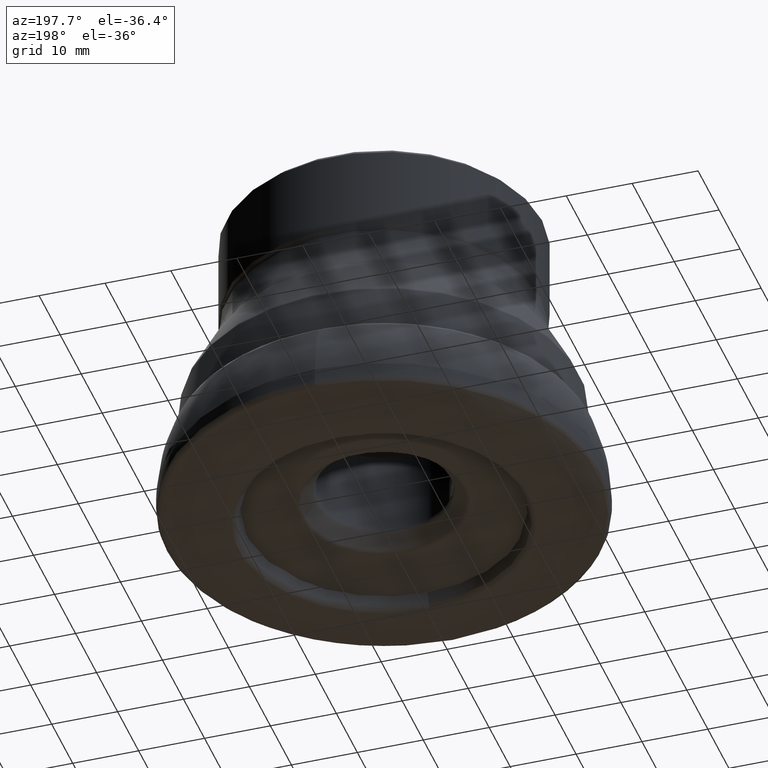
[diagram: clean part render]
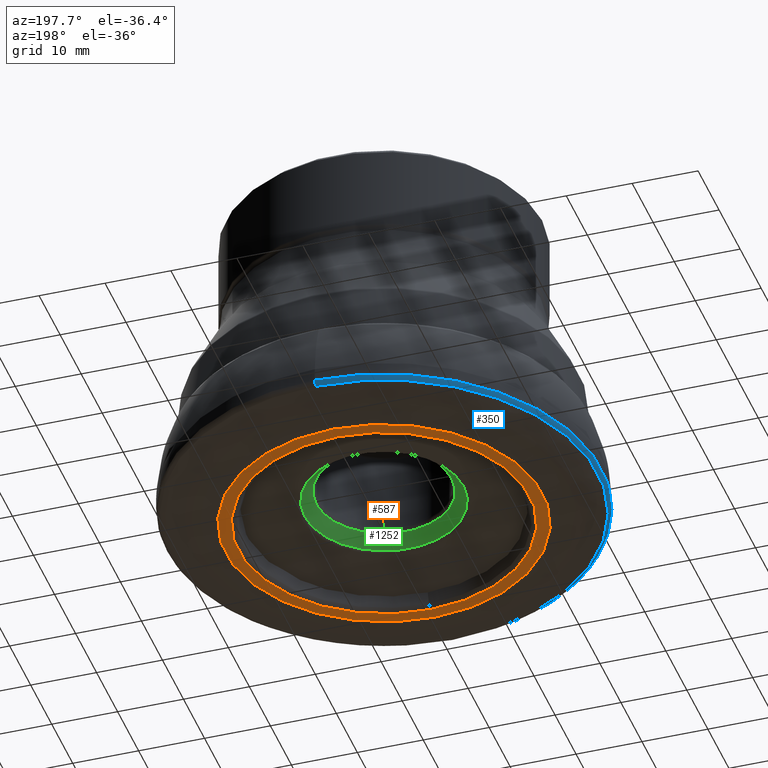
[diagram: same view with three faces highlighted in distinct colors, each labeled with its STEP entity id]
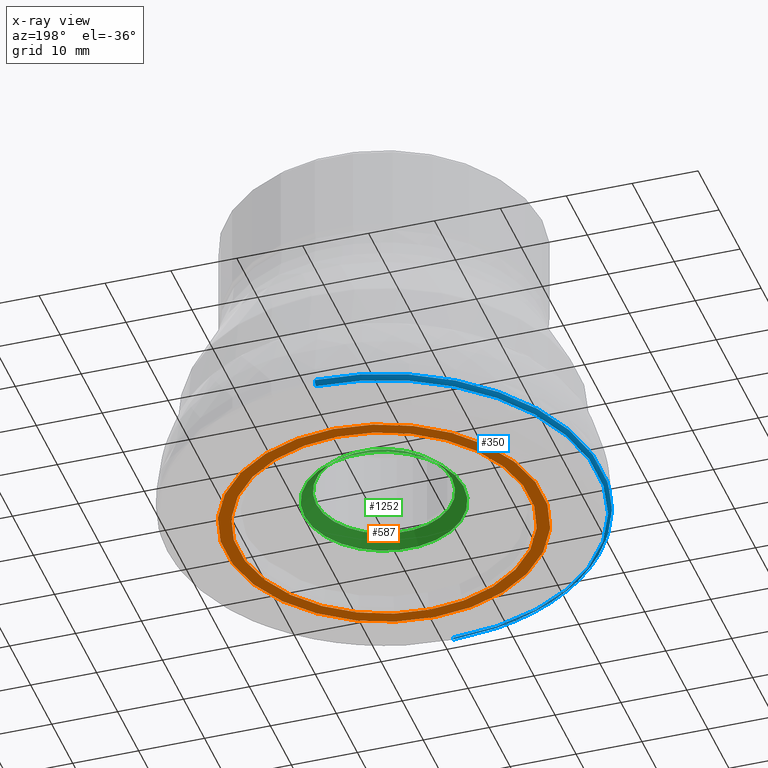
[diagram: x-ray of the same camera — body ghosted, the three highlighted faces saturated]
A machine part, auxiliary view with three faces highlighted in distinct colors.
The next image is the same camera in x-ray (body ghosted, the three faces saturated) — at least one of them is partly hidden behind the body in this view.
Their STEP definitions:

[orange] entity #587 — the highlighted planar face has unit normal (-0, 0, -1).
#25 = CARTESIAN_POINT ( 'NONE',  ( 0.0000000000000000000, -24.06061272638903900, -0.009049119679202716200 ) ) ;
#127 = FACE_OUTER_BOUND ( 'NONE', #2921, .T. ) ;
#162 = CIRCLE ( 'NONE', #975, 22.09666473710842600 ) ;
#204 = FACE_BOUND ( 'NONE', #2999, .T. ) ;
#341 = AXIS2_PLACEMENT_3D ( 'NONE', #2000, #2032, #668 ) ;
#344 = AXIS2_PLACEMENT_3D ( 'NONE', #1964, #2761, #1353 ) ;
#444 = EDGE_CURVE ( 'NONE', #800, #2197, #1609, .T. ) ;
#466 = ORIENTED_EDGE ( 'NONE', *, *, #444, .T. ) ;
#587 = ADVANCED_FACE ( 'NONE', ( #127, #204 ), #1591, .T. ) ;
#668 = DIRECTION ( 'NONE',  ( 0.0000000000000000000, -1.000000000000000000, -1.249000902703301100E-016 ) ) ;
#726 = DIRECTION ( 'NONE',  ( -0.0000000000000000000, 1.249000902703301100E-016, -1.000000000000000000 ) ) ;
#762 = CARTESIAN_POINT ( 'NONE',  ( 0.0000000000000000000, 1.130235864799064500E-018, -0.009049119679199711700 ) ) ;
#800 = VERTEX_POINT ( 'NONE', #2903 ) ;
#893 = EDGE_CURVE ( 'NONE', #2482, #2708, #2331, .T. ) ;
#975 = AXIS2_PLACEMENT_3D ( 'NONE', #1235, #1943, #1017 ) ;
#980 = ORIENTED_EDGE ( 'NONE', *, *, #893, .F. ) ;
#984 = DIRECTION ( 'NONE',  ( 0.0000000000000000000, 1.000000000000000000, 1.249042545604898400E-016 ) ) ;
#1017 = DIRECTION ( 'NONE',  ( 0.0000000000000000000, 1.000000000000000000, 1.248891348530111600E-016 ) ) ;
#1235 = CARTESIAN_POINT ( 'NONE',  ( 0.0000000000000000000, 1.130235864181265900E-018, -0.009049119674253369700 ) ) ;
#1353 = DIRECTION ( 'NONE',  ( 0.0000000000000000000, 1.000000000000000000, 1.248891348530112000E-016 ) ) ;
#1591 = PLANE ( 'NONE',  #341 ) ;
#1609 = CIRCLE ( 'NONE', #344, 22.09666473710841600 ) ;
#1658 = CARTESIAN_POINT ( 'NONE',  ( 0.0000000000000000000, 24.06061272638903500, -0.009049119679203429200 ) ) ;
#1895 = DIRECTION ( 'NONE',  ( 0.0000000000000000000, 1.000000000000000000, 1.249042545604898400E-016 ) ) ;
#1943 = DIRECTION ( 'NONE',  ( -0.0000000000000000000, 1.249000902703301100E-016, -1.000000000000000000 ) ) ;
#1964 = CARTESIAN_POINT ( 'NONE',  ( 0.0000000000000000000, 1.130235864181901300E-018, -0.009049119674258454200 ) ) ;
#2000 = CARTESIAN_POINT ( 'NONE',  ( 1.543001851605742600E-013, -22.09666473710841200, -0.009049119676735203900 ) ) ;
#2032 = DIRECTION ( 'NONE',  ( 0.0000000000000000000, -1.249000902703301100E-016, 1.000000000000000000 ) ) ;
#2083 = CARTESIAN_POINT ( 'NONE',  ( 0.0000000000000000000, 22.09666473710841600, -0.009049119674255694200 ) ) ;
#2197 = VERTEX_POINT ( 'NONE', #2083 ) ;
#2290 = DIRECTION ( 'NONE',  ( -0.0000000000000000000, 1.249000902703301100E-016, -1.000000000000000000 ) ) ;
#2331 = CIRCLE ( 'NONE', #3009, 24.06061272638903500 ) ;
#2382 = ORIENTED_EDGE ( 'NONE', *, *, #2586, .T. ) ;
#2482 = VERTEX_POINT ( 'NONE', #25 ) ;
#2586 = EDGE_CURVE ( 'NONE', #2197, #800, #162, .T. ) ;
#2622 = CARTESIAN_POINT ( 'NONE',  ( 0.0000000000000000000, 1.130235864799904400E-018, -0.009049119679206435500 ) ) ;
#2708 = VERTEX_POINT ( 'NONE', #1658 ) ;
#2761 = DIRECTION ( 'NONE',  ( -0.0000000000000000000, 1.249000902703301100E-016, -1.000000000000000000 ) ) ;
#2805 = EDGE_CURVE ( 'NONE', #2708, #2482, #2984, .T. ) ;
#2866 = AXIS2_PLACEMENT_3D ( 'NONE', #762, #726, #1895 ) ;
#2903 = CARTESIAN_POINT ( 'NONE',  ( 0.0000000000000000000, -22.09666473710842600, -0.009049119674256127900 ) ) ;
#2921 = EDGE_LOOP ( 'NONE', ( #980, #2954 ) ) ;
#2954 = ORIENTED_EDGE ( 'NONE', *, *, #2805, .F. ) ;
#2984 = CIRCLE ( 'NONE', #2866, 24.06061272638903900 ) ;
#2999 = EDGE_LOOP ( 'NONE', ( #466, #2382 ) ) ;
#3009 = AXIS2_PLACEMENT_3D ( 'NONE', #2622, #2290, #984 ) ;

[blue] entity #350 — the highlighted face is a freeform B-spline surface patch.
#38 = CARTESIAN_POINT ( 'NONE',  ( 0.0000000000000000000, 32.94801806438736200, -2.559742976856826900 ) ) ;
#49 = CARTESIAN_POINT ( 'NONE',  ( -1.462960750445829300E-014, 32.94294745282746800, -2.505011401221884700 ) ) ;
#109 = CARTESIAN_POINT ( 'NONE',  ( -1.446981958185640900E-014, 32.58313703848341400, -1.917974428503318000 ) ) ;
#123 = DIRECTION ( 'NONE',  ( 0.0000000000000000000, 1.000000000000000000, 1.184632050802049100E-016 ) ) ;
#133 = EDGE_CURVE ( 'NONE', #278, #1051, #1268, .T. ) ;
#227 = CARTESIAN_POINT ( 'NONE',  ( 2.285145186977549300E-013, -32.72457970138698600, -2.044693922306602300 ) ) ;
#232 = CARTESIAN_POINT ( 'NONE',  ( 0.0000000000000000000, 32.41736122466293300, -1.825446698514395600 ) ) ;
#244 = CARTESIAN_POINT ( 'NONE',  ( -2.273589036852662300E-013, 32.55908905424642800, -1.897421332414186600 ) ) ;
#277 = CARTESIAN_POINT ( 'NONE',  ( 2.290214650883904600E-013, -32.79717730988566900, -2.134476818563881400 ) ) ;
#278 = VERTEX_POINT ( 'NONE', #1277 ) ;
#312 = CARTESIAN_POINT ( 'NONE',  ( 2.275268298616667300E-013, -32.58313703848341400, -1.917974428503326200 ) ) ;
#335 = CARTESIAN_POINT ( 'NONE',  ( -1.453263274226436400E-014, 32.72457970138698600, -2.044693922306594300 ) ) ;
#343 = CARTESIAN_POINT ( 'NONE',  ( 2.298998290133476100E-013, -32.92296402327652100, -2.398189108758559800 ) ) ;
#350 = ADVANCED_FACE ( 'NONE', ( #2845 ), #2189, .T. ) ;
#361 = EDGE_LOOP ( 'NONE', ( #2373, #826, #642, #2521 ) ) ;
#371 = CARTESIAN_POINT ( 'NONE',  ( -65.88589490565515000, -32.94294745282793000, -2.505011401221893100 ) ) ;
#427 = B_SPLINE_CURVE_WITH_KNOTS ( 'NONE', 3,
 ( #38, #1828, #2808, #2377, #1962, #2179, #2831, #1244, #244, #794, #2389 ),
 .UNSPECIFIED., .F., .F.,
 ( 4, 1, 1, 1, 1, 1, 1, 1, 4 ),
 ( 0.0000000000000000000, 0.08537500329144143100, 0.1780538630032477700, 0.2780277523089671500, 0.3852924662884296100, 0.4998505141560645200, 0.6665372001424375600, 0.8332302984965510600, 1.000000000000000000 ),
 .UNSPECIFIED. ) ;
#575 = CARTESIAN_POINT ( 'NONE',  ( -65.84592804655324000, -32.92296402327698200, -2.398189108758559800 ) ) ;
#642 = ORIENTED_EDGE ( 'NONE', *, *, #2489, .F. ) ;
#657 = CARTESIAN_POINT ( 'NONE',  ( 0.0000000000000000000, -32.94801806434610800, -2.559742976590229100 ) ) ;
#672 = CARTESIAN_POINT ( 'NONE',  ( -65.00629438542310400, 32.50314719271129600, -1.866474937752472500 ) ) ;
#784 = CARTESIAN_POINT ( 'NONE',  ( -1.459591084091105500E-014, 32.86706931213005600, -2.252257260302390500 ) ) ;
#794 = CARTESIAN_POINT ( 'NONE',  ( -2.267080226900232400E-013, 32.46587919114306000, -1.846565166510326600 ) ) ;
#819 = CARTESIAN_POINT ( 'NONE',  ( -65.16627407696726900, 32.58313703848338600, -1.917974428503318000 ) ) ;
#826 = ORIENTED_EDGE ( 'NONE', *, *, #2429, .F. ) ;
#829 = CARTESIAN_POINT ( 'NONE',  ( -65.73413862426031100, -32.86706931213051800, -2.252257260302398900 ) ) ;
#874 = CARTESIAN_POINT ( 'NONE',  ( 2.263692235408920000E-013, -32.41736122466247100, -1.825446698515551100 ) ) ;
#877 = CARTESIAN_POINT ( 'NONE',  ( -65.73413862426056700, 32.86706931213002700, -2.252257260302390500 ) ) ;
#880 = CARTESIAN_POINT ( 'NONE',  ( -65.88589490565539100, 32.94294745282744000, -2.505011401221884700 ) ) ;
#901 = CARTESIAN_POINT ( 'NONE',  ( 0.0000000000000000000, -32.94801806434610800, -2.559742976590229100 ) ) ;
#1047 = CARTESIAN_POINT ( 'NONE',  ( 0.0000000000000000000, 32.94801806438736200, -2.559742976856826900 ) ) ;
#1049 = CARTESIAN_POINT ( 'NONE',  ( -1.439620033168439900E-014, 32.41736122466247100, -1.825446698515543100 ) ) ;
#1051 = VERTEX_POINT ( 'NONE', #232 ) ;
#1081 = CARTESIAN_POINT ( 'NONE',  ( -65.89603612877492400, -32.94801806438781700, -2.559742976856835400 ) ) ;
#1088 = CARTESIAN_POINT ( 'NONE',  ( 2.280447076866204700E-013, -32.65730009059431900, -1.977459494128627400 ) ) ;
#1148 = CARTESIAN_POINT ( 'NONE',  ( 2.275268298616667300E-013, -32.58313703848341400, -1.917974428503326200 ) ) ;
#1205 = CARTESIAN_POINT ( 'NONE',  ( -65.59435461977152200, -32.79717730988612300, -2.134476818563881400 ) ) ;
#1244 = CARTESIAN_POINT ( 'NONE',  ( -2.282228543047066100E-013, 32.68281170025183300, -1.997526800424402400 ) ) ;
#1268 = CIRCLE ( 'NONE', #2590, 32.41736122466293300 ) ;
#1277 = CARTESIAN_POINT ( 'NONE',  ( 0.0000000000000000000, -32.41736122466247100, -1.825446698515541800 ) ) ;
#1295 = EDGE_CURVE ( 'NONE', #1582, #278, #1382, .T. ) ;
#1356 = CARTESIAN_POINT ( 'NONE',  ( -1.456487255685950700E-014, 32.79717730988566900, -2.134476818563872900 ) ) ;
#1382 = B_SPLINE_CURVE_WITH_KNOTS ( 'NONE', 3,
 ( #657, #2639, #1920, #2242, #277, #227, #1846, #1148, #2564, #1592, #1867 ),
 .UNSPECIFIED., .F., .F.,
 ( 4, 1, 1, 1, 1, 1, 1, 1, 4 ),
 ( 0.0000000000000000000, 0.1693334816369870300, 0.3360369536513149200, 0.5001637457366492300, 0.6001167329050290900, 0.7000613092117293800, 0.8000134738808265500, 0.8999883467685461100, 1.000000000000000000 ),
 .UNSPECIFIED. ) ;
#1444 = AXIS2_PLACEMENT_3D ( 'NONE', #1500, #2435, #123 ) ;
#1448 = CARTESIAN_POINT ( 'NONE',  ( -1.440910270761121600E-014, 32.44641479237057500, -1.838092876504550600 ) ) ;
#1497 = CARTESIAN_POINT ( 'NONE',  ( 0.0000000000000000000, 2.279984574281245500E-016, -1.825446698514399300 ) ) ;
#1500 = CARTESIAN_POINT ( 'NONE',  ( 0.0000000000000000000, 3.197121288782617700E-016, -2.559742976856831400 ) ) ;
#1520 = CARTESIAN_POINT ( 'NONE',  ( 2.295095183315318100E-013, -32.86706931213005600, -2.252257260302398500 ) ) ;
#1563 = CARTESIAN_POINT ( 'NONE',  ( -65.00629438542286200, -32.50314719271177900, -1.866474937752481000 ) ) ;
#1565 = CARTESIAN_POINT ( 'NONE',  ( 2.290214650883904600E-013, -32.79717730988566900, -2.134476818563881400 ) ) ;
#1582 = VERTEX_POINT ( 'NONE', #901 ) ;
#1592 = CARTESIAN_POINT ( 'NONE',  ( 2.265721035198513300E-013, -32.44641479237057500, -1.838092876504558500 ) ) ;
#1628 = CARTESIAN_POINT ( 'NONE',  ( -65.89603612877517900, 32.94801806438733400, -2.559742976856826500 ) ) ;
#1632 = CARTESIAN_POINT ( 'NONE',  ( -1.450275459306842800E-014, 32.65730009059431900, -1.977459494128619000 ) ) ;
#1641 = CARTESIAN_POINT ( 'NONE',  ( -65.44915940277441300, 32.72457970138696500, -2.044693922306594300 ) ) ;
#1706 = CARTESIAN_POINT ( 'NONE',  ( 2.300393725560741200E-013, -32.94294745282746800, -2.505011401221893100 ) ) ;
#1768 = CARTESIAN_POINT ( 'NONE',  ( -1.443429695445144400E-014, 32.50314719271133200, -1.866474937752472800 ) ) ;
#1772 = VERTEX_POINT ( 'NONE', #1047 ) ;
#1828 = CARTESIAN_POINT ( 'NONE',  ( -2.300605485999396600E-013, 32.94597998283557400, -2.537744167978563500 ) ) ;
#1846 = CARTESIAN_POINT ( 'NONE',  ( 2.280447076866204700E-013, -32.65730009059431900, -1.977459494128627400 ) ) ;
#1867 = CARTESIAN_POINT ( 'NONE',  ( 0.0000000000000000000, -32.41736122466247100, -1.825446698515541800 ) ) ;
#1920 = CARTESIAN_POINT ( 'NONE',  ( 2.298998290133476100E-013, -32.92296402327652100, -2.398189108758559800 ) ) ;
#1962 = CARTESIAN_POINT ( 'NONE',  ( -2.296435038765241000E-013, 32.88625680477131400, -2.301280303147585000 ) ) ;
#2110 = CARTESIAN_POINT ( 'NONE',  ( -65.44915940277418500, -32.72457970138744100, -2.044693922306601900 ) ) ;
#2128 = CARTESIAN_POINT ( 'NONE',  ( -64.89282958474136400, -32.44641479237102300, -1.838092876504558500 ) ) ;
#2139 = CARTESIAN_POINT ( 'NONE',  ( -65.16627407696704200, -32.58313703848387600, -1.917974428503326000 ) ) ;
#2162 = CARTESIAN_POINT ( 'NONE',  ( 2.300747804473498400E-013, -32.94801806438736200, -2.559742976856835400 ) ) ;
#2179 = CARTESIAN_POINT ( 'NONE',  ( -2.293360205556733100E-013, 32.84222344313909800, -2.209162265395116600 ) ) ;
#2189 =( BOUNDED_SURFACE ( )  B_SPLINE_SURFACE ( 3, 3, ( 
 ( #2162, #1081, #1628, #2835 ),
 ( #1706, #371, #880, #49 ),
 ( #343, #575, #2340, #2287 ),
 ( #1520, #829, #877, #784 ),
 ( #1565, #1205, #2567, #1356 ),
 ( #2814, #2110, #1641, #335 ),
 ( #1088, #2584, #2414, #1632 ),
 ( #312, #2139, #819, #109 ),
 ( #2193, #1563, #672, #1768 ),
 ( #2284, #2128, #3015, #1448 ),
 ( #874, #2973, #2484, #1049 ) ),
 .UNSPECIFIED., .F., .F., .T. ) 
 B_SPLINE_SURFACE_WITH_KNOTS ( ( 4, 1, 1, 1, 1, 1, 1, 1, 4 ),
 ( 4, 4 ),
 ( 0.0000000000000000000, 0.1693334816369870300, 0.3360369536513149200, 0.5001637457366492300, 0.6001167329050290900, 0.7000613092117293800, 0.8000134738808265500, 0.8999883467685461100, 1.000000000000000000 ),
 ( 0.0000000000000000000, 1.000000000000000000 ),
 .UNSPECIFIED. ) 
 GEOMETRIC_REPRESENTATION_ITEM ( )  RATIONAL_B_SPLINE_SURFACE ( (
 ( 1.000000000000000000, 0.3333333333333311500, 0.3333333333333311500, 1.000000000000000000),
 ( 1.000000000000000000, 0.3333333333333311500, 0.3333333333333311500, 1.000000000000000000),
 ( 1.000000000000000000, 0.3333333333333311500, 0.3333333333333311500, 1.000000000000000000),
 ( 1.000000000000000000, 0.3333333333333311500, 0.3333333333333311500, 1.000000000000000000),
 ( 1.000000000000000000, 0.3333333333333311500, 0.3333333333333311500, 1.000000000000000000),
 ( 1.000000000000000000, 0.3333333333333311500, 0.3333333333333311500, 1.000000000000000000),
 ( 1.000000000000000000, 0.3333333333333311500, 0.3333333333333311500, 1.000000000000000000),
 ( 1.000000000000000000, 0.3333333333333311500, 0.3333333333333311500, 1.000000000000000000),
 ( 1.000000000000000000, 0.3333333333333311500, 0.3333333333333311500, 1.000000000000000000),
 ( 1.000000000000000000, 0.3333333333333311500, 0.3333333333333311500, 1.000000000000000000),
 ( 1.000000000000000000, 0.3333333333333311500, 0.3333333333333311500, 1.000000000000000000) ) ) 
 REPRESENTATION_ITEM ( '' )  SURFACE ( )  );
#2193 = CARTESIAN_POINT ( 'NONE',  ( 2.269682637540463500E-013, -32.50314719271133200, -1.866474937752480700 ) ) ;
#2242 = CARTESIAN_POINT ( 'NONE',  ( 2.295095183315318100E-013, -32.86706931213005600, -2.252257260302398500 ) ) ;
#2284 = CARTESIAN_POINT ( 'NONE',  ( 2.265721035198513300E-013, -32.44641479237057500, -1.838092876504558500 ) ) ;
#2287 = CARTESIAN_POINT ( 'NONE',  ( -1.462073307901891800E-014, 32.92296402327652100, -2.398189108758551400 ) ) ;
#2340 = CARTESIAN_POINT ( 'NONE',  ( -65.84592804655349600, 32.92296402327649200, -2.398189108758551400 ) ) ;
#2373 = ORIENTED_EDGE ( 'NONE', *, *, #133, .T. ) ;
#2377 = CARTESIAN_POINT ( 'NONE',  ( -2.298608071644373700E-013, 32.91737587241399900, -2.391135613912877200 ) ) ;
#2389 = CARTESIAN_POINT ( 'NONE',  ( 0.0000000000000000000, 32.41736122466293300, -1.825446698514395600 ) ) ;
#2414 = CARTESIAN_POINT ( 'NONE',  ( -65.31460018118907800, 32.65730009059429100, -1.977459494128619200 ) ) ;
#2429 = EDGE_CURVE ( 'NONE', #1772, #1051, #427, .T. ) ;
#2435 = DIRECTION ( 'NONE',  ( -0.0000000000000000000, 1.249000902703301100E-016, -1.000000000000000000 ) ) ;
#2484 = CARTESIAN_POINT ( 'NONE',  ( -64.83472244932538300, 32.41736122466244300, -1.825446698515542900 ) ) ;
#2489 = EDGE_CURVE ( 'NONE', #1582, #1772, #2661, .T. ) ;
#2516 = DIRECTION ( 'NONE',  ( -0.0000000000000000000, 1.249000902703301100E-016, -1.000000000000000000 ) ) ;
#2521 = ORIENTED_EDGE ( 'NONE', *, *, #1295, .T. ) ;
#2564 = CARTESIAN_POINT ( 'NONE',  ( 2.269682637540463500E-013, -32.50314719271133200, -1.866474937752480700 ) ) ;
#2567 = CARTESIAN_POINT ( 'NONE',  ( -65.59435461977177800, 32.79717730988564000, -2.134476818563872900 ) ) ;
#2584 = CARTESIAN_POINT ( 'NONE',  ( -65.31460018118883700, -32.65730009059477400, -1.977459494128627200 ) ) ;
#2590 = AXIS2_PLACEMENT_3D ( 'NONE', #1497, #2516, #2715 ) ;
#2639 = CARTESIAN_POINT ( 'NONE',  ( 2.300393725560741200E-013, -32.94294745282746800, -2.505011401221893100 ) ) ;
#2661 = CIRCLE ( 'NONE', #1444, 32.94801806438736200 ) ;
#2715 = DIRECTION ( 'NONE',  ( 0.0000000000000000000, 1.000000000000000000, 1.270914133600260500E-016 ) ) ;
#2808 = CARTESIAN_POINT ( 'NONE',  ( -2.300178752183375600E-013, 32.93986891170835200, -2.490267567782773900 ) ) ;
#2814 = CARTESIAN_POINT ( 'NONE',  ( 2.285145186977549300E-013, -32.72457970138698600, -2.044693922306602300 ) ) ;
#2831 = CARTESIAN_POINT ( 'NONE',  ( -2.288762882770249200E-013, 32.77638716420301500, -2.104899766715802500 ) ) ;
#2835 = CARTESIAN_POINT ( 'NONE',  ( -1.463185930833936700E-014, 32.94801806438736200, -2.559742976856826900 ) ) ;
#2845 = FACE_OUTER_BOUND ( 'NONE', #361, .T. ) ;
#2973 = CARTESIAN_POINT ( 'NONE',  ( -64.83472244932517000, -32.41736122466292600, -1.825446698515550900 ) ) ;
#3015 = CARTESIAN_POINT ( 'NONE',  ( -64.89282958474157700, 32.44641479237054000, -1.838092876504550600 ) ) ;

[green] entity #1252 — the highlighted conical surface has half-angle 45 deg.
#104 = EDGE_LOOP ( 'NONE', ( #1615 ) ) ;
#150 = VERTEX_POINT ( 'NONE', #1279 ) ;
#166 = CONICAL_SURFACE ( 'NONE', #1874, 12.06849057775908400, 0.7853981633983583300 ) ;
#231 = EDGE_CURVE ( 'NONE', #2538, #2538, #1195, .T. ) ;
#255 = CARTESIAN_POINT ( 'NONE',  ( 0.0000000000000000000, 0.0000000000000000000, -5.707106781193219900 ) ) ;
#322 = FACE_OUTER_BOUND ( 'NONE', #433, .T. ) ;
#392 = CIRCLE ( 'NONE', #2642, 10.29289321881174900 ) ;
#433 = EDGE_LOOP ( 'NONE', ( #1749 ) ) ;
#1025 = EDGE_CURVE ( 'NONE', #150, #150, #392, .T. ) ;
#1102 = DIRECTION ( 'NONE',  ( -0.0000000000000000000, -0.0000000000000000000, 1.000000000000000000 ) ) ;
#1128 = DIRECTION ( 'NONE',  ( 1.000000000000000000, 0.0000000000000000000, 0.0000000000000000000 ) ) ;
#1195 = CIRCLE ( 'NONE', #2421, 12.06849057775908400 ) ;
#1252 = ADVANCED_FACE ( 'NONE', ( #2665, #322 ), #166, .F. ) ;
#1279 = CARTESIAN_POINT ( 'NONE',  ( 10.29289321881174900, 0.0000000000000000000, -5.707106781193219900 ) ) ;
#1314 = DIRECTION ( 'NONE',  ( -0.0000000000000000000, -0.0000000000000000000, 1.000000000000000000 ) ) ;
#1584 = CARTESIAN_POINT ( 'NONE',  ( 0.0000000000000000000, 0.0000000000000000000, -3.931509422249117100 ) ) ;
#1590 = DIRECTION ( 'NONE',  ( -0.0000000000000000000, -0.0000000000000000000, 1.000000000000000000 ) ) ;
#1615 = ORIENTED_EDGE ( 'NONE', *, *, #1025, .F. ) ;
#1749 = ORIENTED_EDGE ( 'NONE', *, *, #231, .T. ) ;
#1868 = DIRECTION ( 'NONE',  ( 1.000000000000000000, 0.0000000000000000000, 0.0000000000000000000 ) ) ;
#1874 = AXIS2_PLACEMENT_3D ( 'NONE', #2085, #1102, #1128 ) ;
#1978 = CARTESIAN_POINT ( 'NONE',  ( 12.06849057775908400, 0.0000000000000000000, -3.931509422249117100 ) ) ;
#2085 = CARTESIAN_POINT ( 'NONE',  ( 0.0000000000000000000, 0.0000000000000000000, -3.931509422249117100 ) ) ;
#2421 = AXIS2_PLACEMENT_3D ( 'NONE', #1584, #1590, #1868 ) ;
#2538 = VERTEX_POINT ( 'NONE', #1978 ) ;
#2642 = AXIS2_PLACEMENT_3D ( 'NONE', #255, #1314, #2945 ) ;
#2665 = FACE_BOUND ( 'NONE', #104, .T. ) ;
#2945 = DIRECTION ( 'NONE',  ( 1.000000000000000000, 0.0000000000000000000, 0.0000000000000000000 ) ) ;